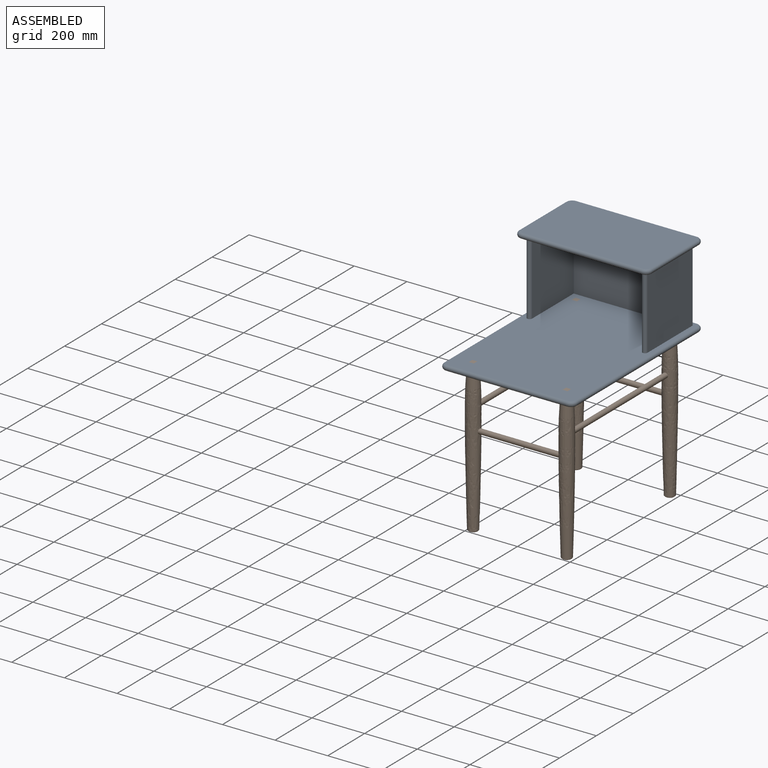
[diagram: assembled view]
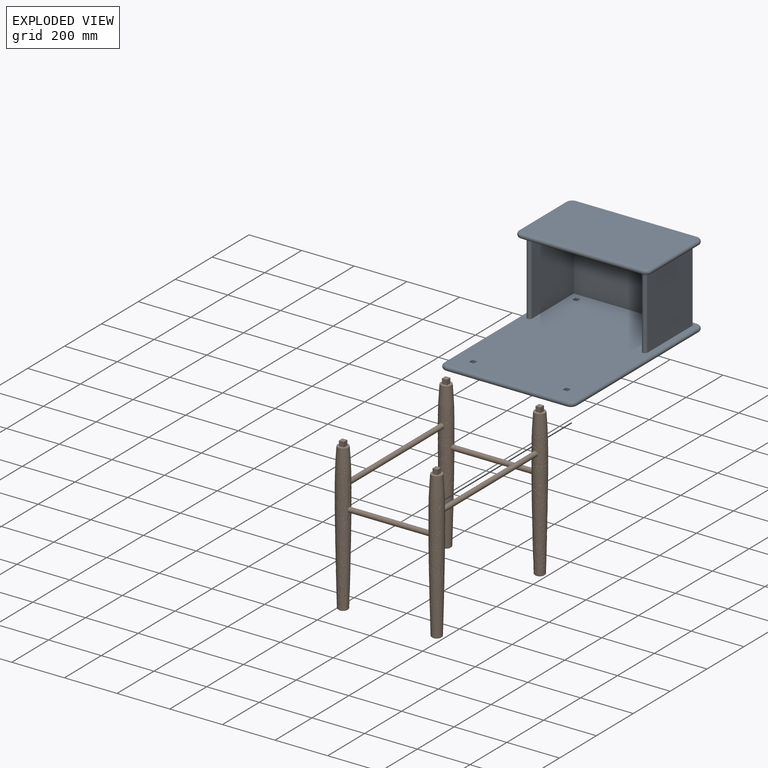
[diagram: exploded view]
GUIDED TOUR — MATED ASSEMBLY WITH SUBASSEMBLIES (Onshape document 42140cbed32f519b6c715c3e, AutoMate assembly 42140cbed32f519b6c715c3e_42d3c3906fbb0b2f734edfca_d33cc1c016509335d22bfc83_default)

This assembly has 13 component occurrences arranged in 2 top-level units: 0 individual components plus 2 subassemblies (S0, S1). The tour has two levels: first the top level, where each subassembly is treated as one rigid unit; then each subassembly is toured internally in its own section (nesting deeper than one subassembly level is flattened into its subassembly's section).

Components are labeled P0..P12 across the whole record; subassembly units are labeled S0..S1. A mate is a constraint between two units; its type names the relative motion it leaves free:
  CYLINDRICAL — leaves both rotation about and translation along the listed axis free,
  PLANAR — leaves sliding in the plane through the listed point (normal = the listed direction) and rotation about that normal free.
Axis/direction vectors are unit vectors and 'through' points are millimeter coordinates, both in the assembly's world frame.

TOP-LEVEL MATES (between units; each subassembly's internal mates are listed in its own section)
  1. PLANAR "Planar 2": S1 <-> S0, direction (0.000, -1.000, 0.000) through (-159.28, -422.03, 234.27) mm
  2. PLANAR "Planar 1": S0 <-> S1, direction (1.000, 0.000, 0.000) through (-168.81, -412.50, 243.80) mm
  3. PLANAR "Planar 3": S0 <-> S1, direction (0.000, 0.000, 1.000) through (18.52, -147.27, 243.80) mm

TOP-LEVEL ASSEMBLY ORDER
  1. S1 — the base component [order verified]
  2. S0 [order verified]
Order-tag legend:
  [order verified] — this step's position reverses a verified removal order: the component was checked to insert without passing through the ones already placed.

Of the 13 component occurrences, 9 carry the full construction recipe — the FeatureScript program that regenerates the part's solid from scratch; the rest are supplied as boundary geometry only. Each toured unit is shown spotlighted twice — assembled, then exploded with a leader line back to its socket (green = recipe-attached component, orange = geometry-only, blue = subassembly unit; the rest desaturated gray).
NOTE — document 2 of 2 of this assembly tour. The two overview renders and the header above are repeated from document 1; the component sections below continue where the previous document stopped.
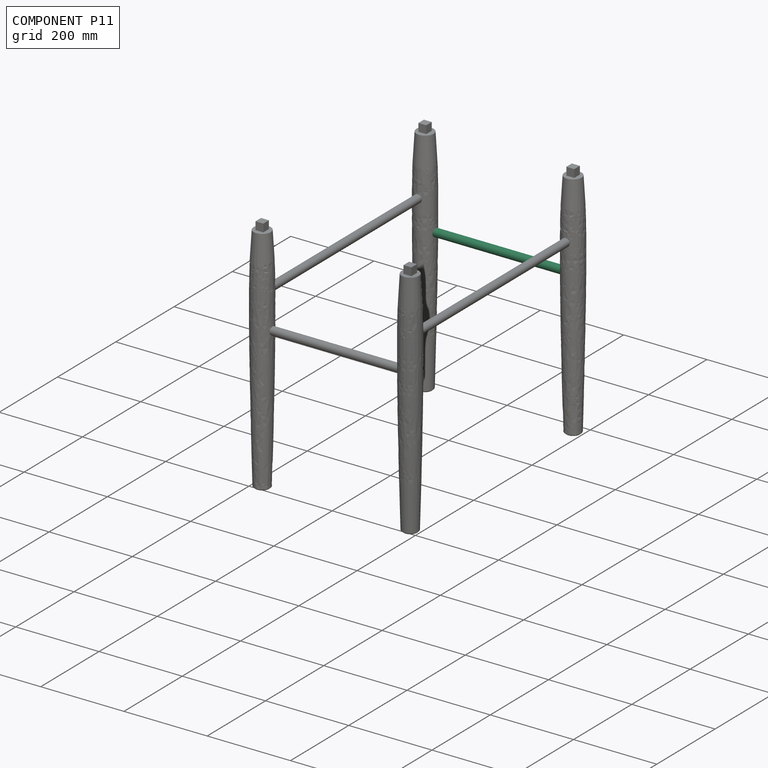
[diagram: component P11 — assembled]
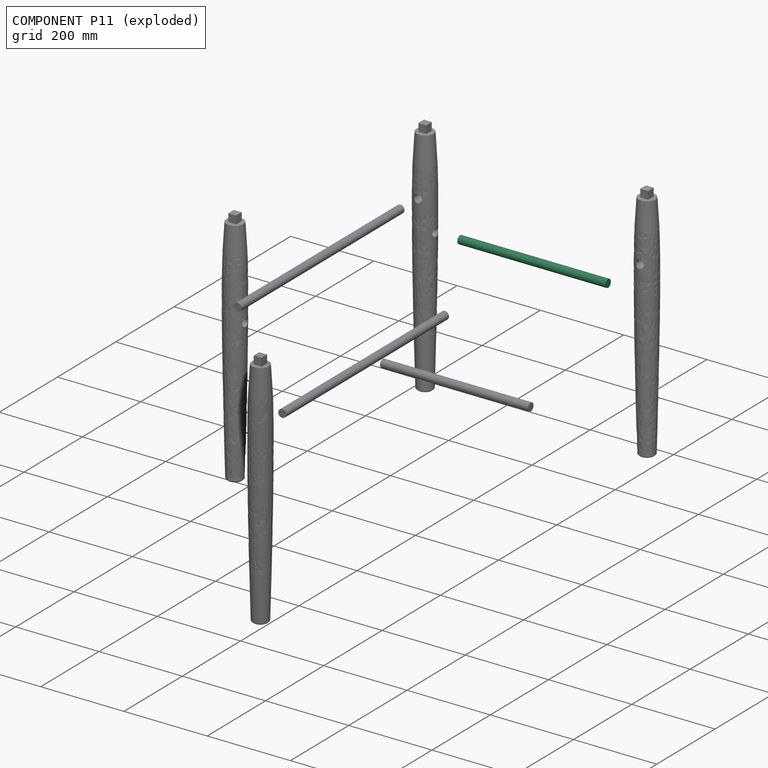
[diagram: component P11 — exploded]
COMPONENT P11 — same part as P2 (CADFS 00509527); its construction recipe is shown at P2.
Held by: CYLINDRICAL mate "Cylindrical 1" to P1; PLANAR mate "Planar 2" to P8; PLANAR mate "Planar 1" to P1; CYLINDRICAL mate "Cylindrical 2" to P8; CYLINDRICAL mate "Cylindrical 1" to P1; CYLINDRICAL mate "Cylindrical 2" to P8; PLANAR mate "Planar 1" to P1; PLANAR mate "Planar 2" to P8.
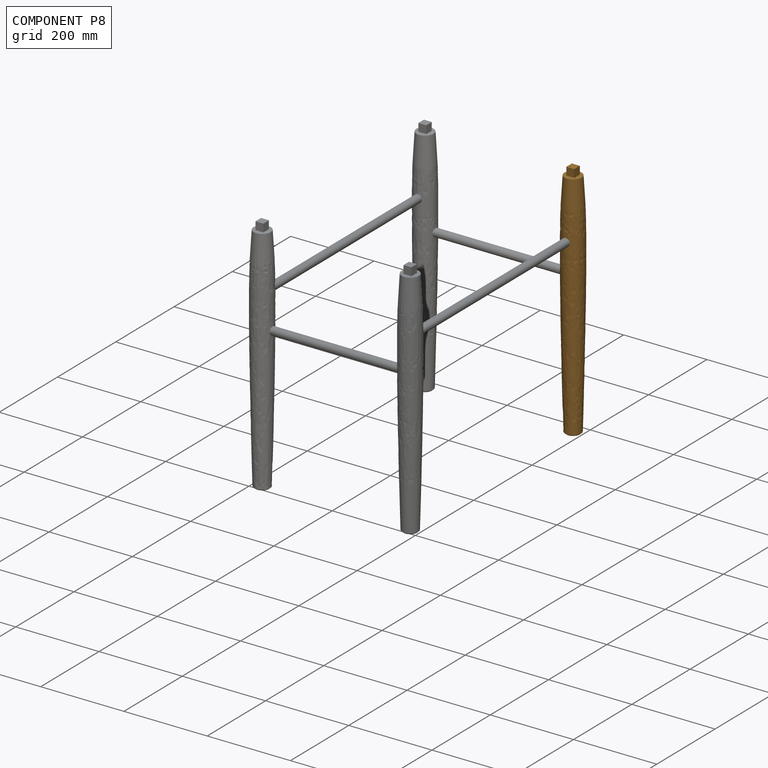
[diagram: component P8 — assembled]
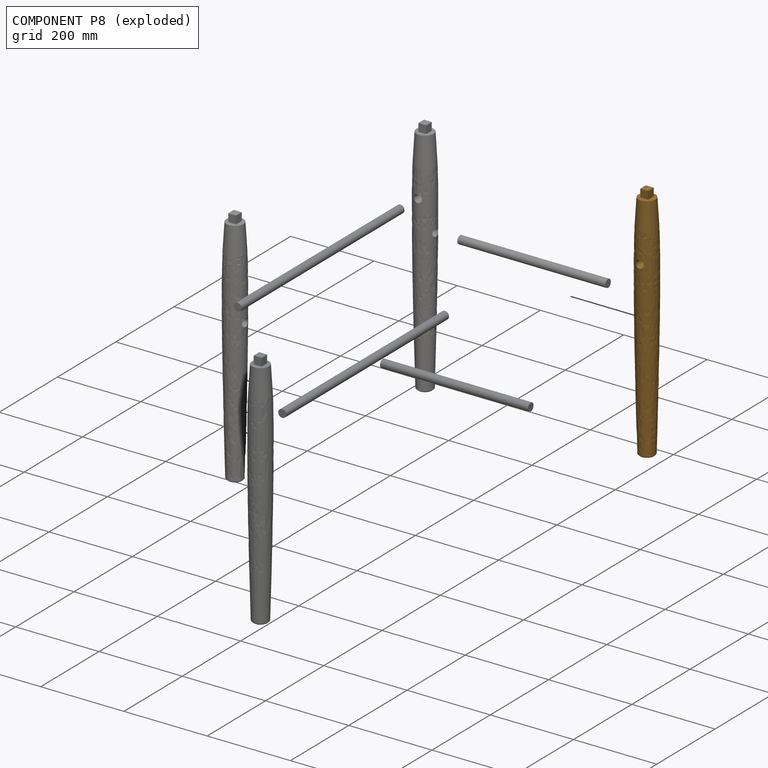
[diagram: component P8 — exploded]
COMPONENT P8 — geometry summary (no construction recipe available for this part):
  bounding box: 577.9 x 52.0 x 52.0 mm
  B-rep topology: 1 solid, 13 faces, 54 edges
  volume: 989218 mm^3 (63% of its bounding box)
Held by: CYLINDRICAL mate "Cylindrical 3" to P12; PLANAR mate "Planar 3" to P12; PLANAR mate "Planar 2" to P11; CYLINDRICAL mate "Cylindrical 2" to P11; CYLINDRICAL mate "Cylindrical 3" to P12; CYLINDRICAL mate "Cylindrical 2" to P11; PLANAR mate "Planar 2" to P11; PLANAR mate "Planar 3" to P12.
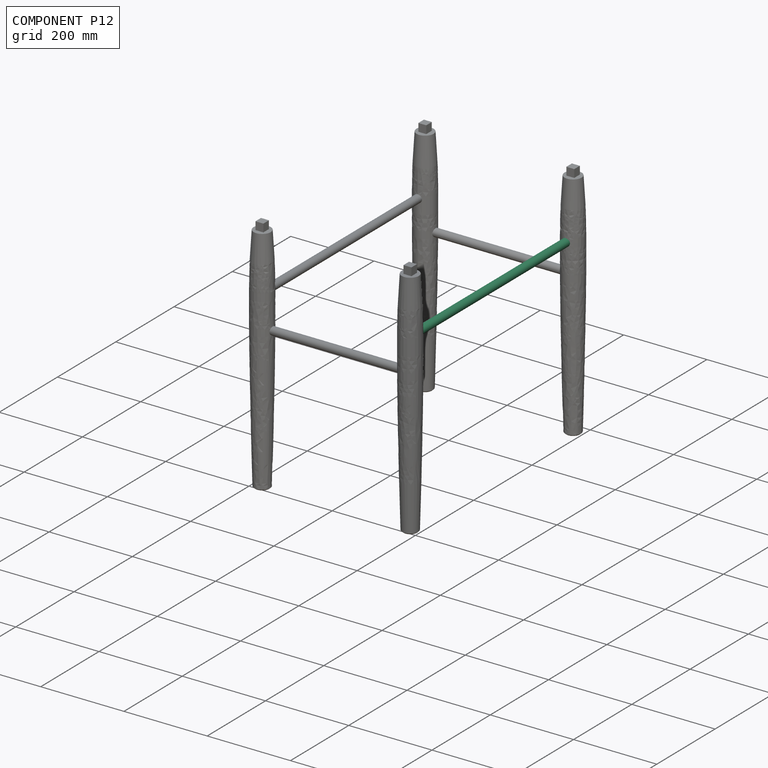
[diagram: component P12 — assembled]
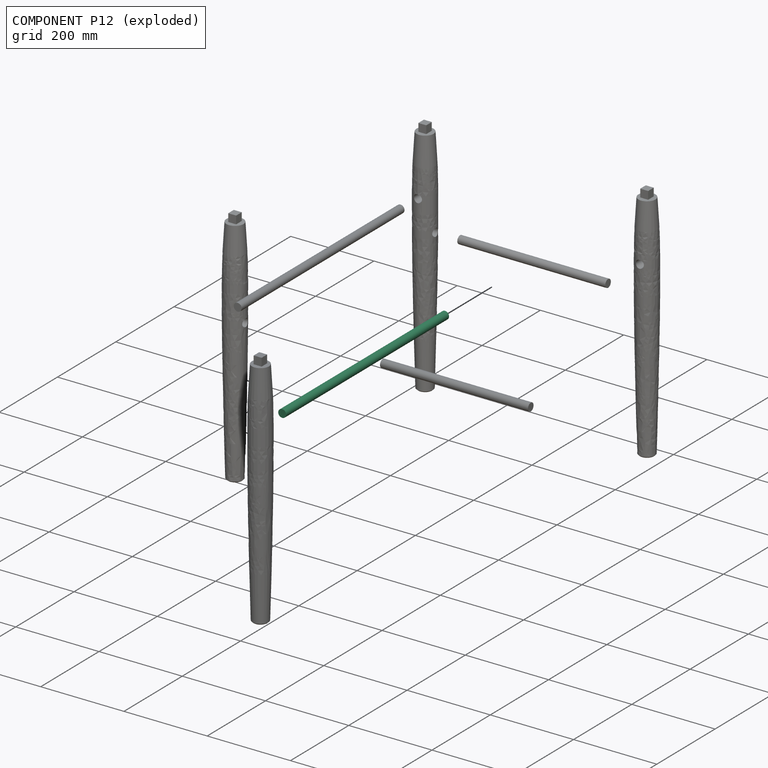
[diagram: component P12 — exploded]
COMPONENT P12 — same part as P9 (CADFS 00509534); its construction recipe is shown at P9.
Held by: PLANAR mate "Planar 4" to P7; CYLINDRICAL mate "Cylindrical 3" to P8; PLANAR mate "Planar 3" to P8; CYLINDRICAL mate "Cylindrical 4" to P7; PLANAR mate "Planar 4" to P7; CYLINDRICAL mate "Cylindrical 4" to P7; CYLINDRICAL mate "Cylindrical 3" to P8; PLANAR mate "Planar 3" to P8.
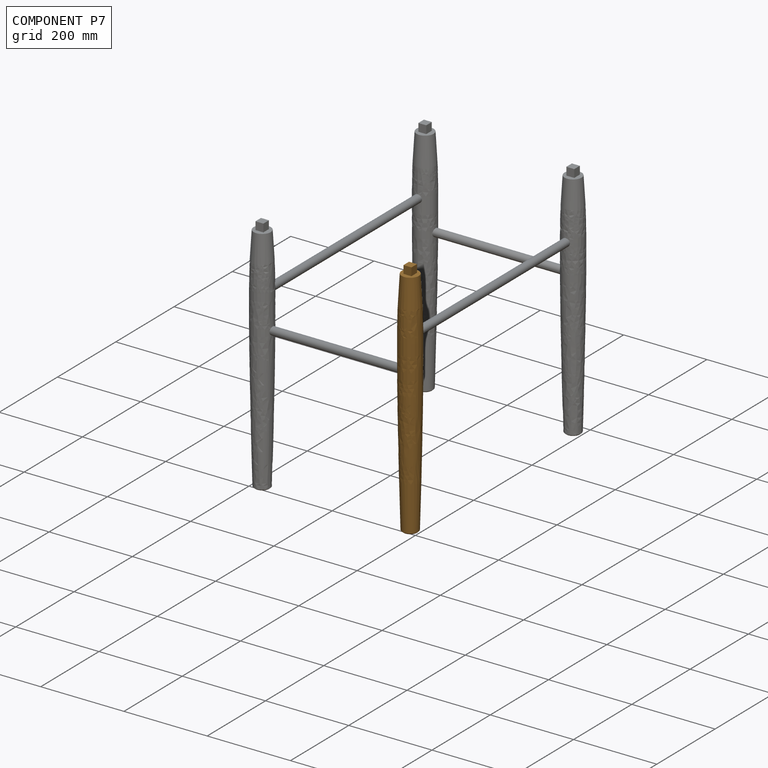
[diagram: component P7 — assembled]
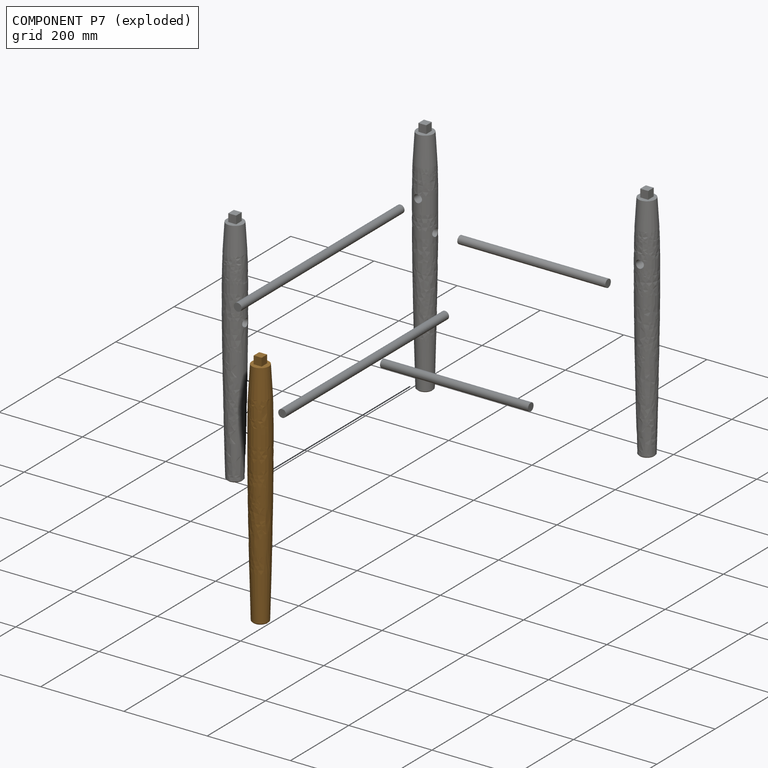
[diagram: component P7 — exploded]
COMPONENT P7 — geometry summary (no construction recipe available for this part):
  bounding box: 577.9 x 52.0 x 52.0 mm
  B-rep topology: 1 solid, 13 faces, 50 edges
  volume: 989243 mm^3 (63% of its bounding box)
Held by: PLANAR mate "Planar 4" to P12; PLANAR mate "Planar 6" to P2; CYLINDRICAL mate "Cylindrical 4" to P12; CYLINDRICAL mate "Cylindrical 7" to P2; PLANAR mate "Planar 4" to P12; CYLINDRICAL mate "Cylindrical 4" to P12; PLANAR mate "Planar 6" to P2; CYLINDRICAL mate "Cylindrical 7" to P2.
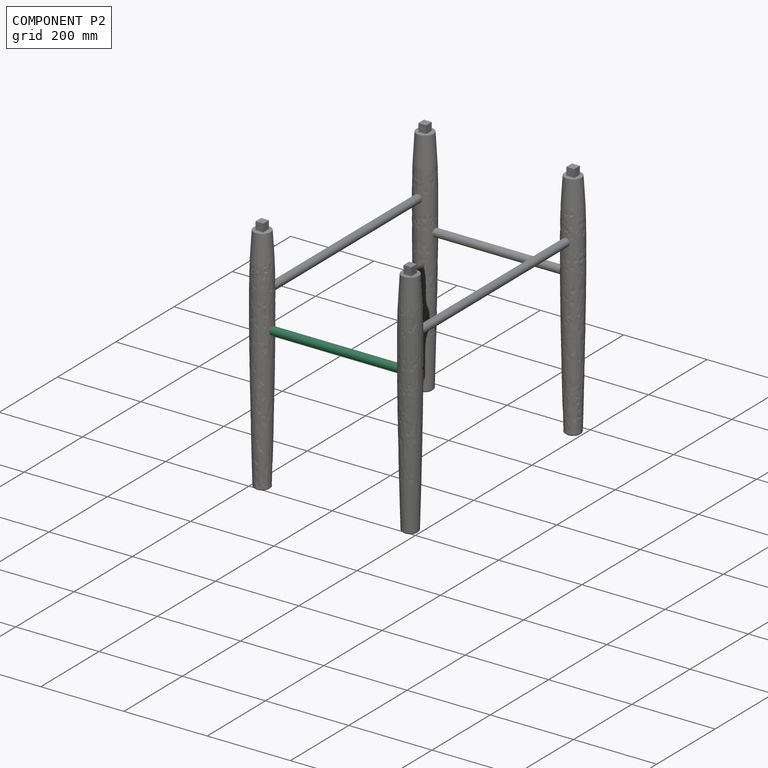
[diagram: component P2 — assembled]
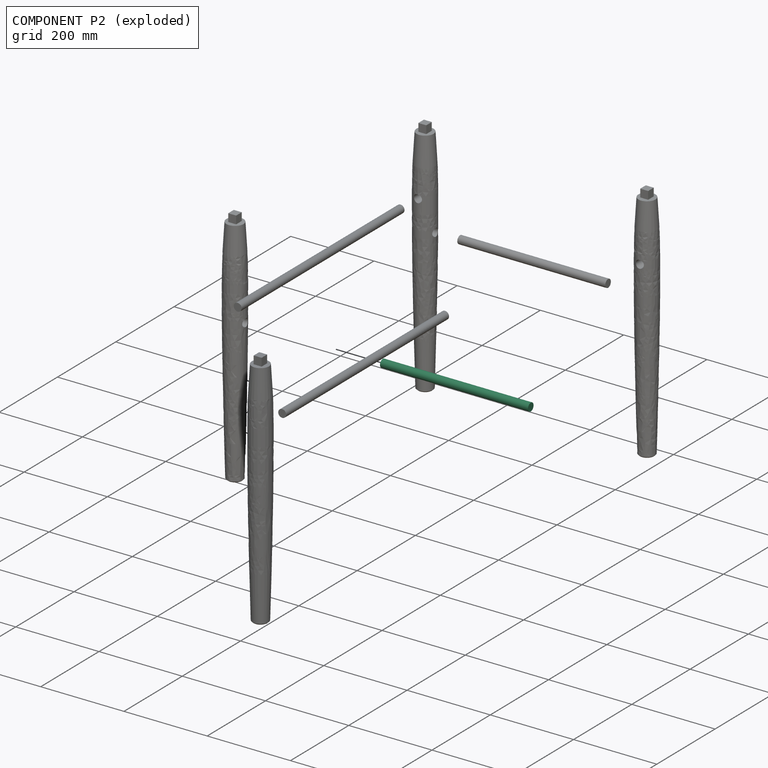
[diagram: component P2 — exploded]
COMPONENT P2 — recipe-attached (CADFS 00509527, mesh-verified: the recipe's output STEP matches this component's geometry to below the mesh-comparison resolution (tessellation chordal tolerance ~0.535 mm)).
Held by: PLANAR mate "Planar 6" to P7; CYLINDRICAL mate "Cylindrical 6" to P4; PLANAR mate "Planar 7" to P4; CYLINDRICAL mate "Cylindrical 7" to P7; PLANAR mate "Planar 6" to P7; CYLINDRICAL mate "Cylindrical 7" to P7; CYLINDRICAL mate "Cylindrical 6" to P4; PLANAR mate "Planar 7" to P4.
Construction recipe (FeatureScript — the CAD program that rebuilds this solid; sketch coordinates are in the units given by the * unit suffixes, e.g. mm):

FeatureScript 1511;
import(path : "onshape/std/geometry.fs", version : "1511.0");
import(path : "onshape/std/common.fs", version : "1511.0");
const mm = millimeter;
const VERTEX = EntityType.VERTEX;
const EDGE = EntityType.EDGE;
const FACE = EntityType.FACE;
const BODY = EntityType.BODY;
function v(x, y){return vector(x, y);}
function OD(order){return orderDisambiguation(order);}
function OSD(set){return originalSetDisambiguation(set);}
function TD(topology){return topologyDisambiguation(topology);}
function TDD(query){return trueDependencyDisambiguation(query);}
function sQuery(a, b, c) {return sketchEntityQuery(a, b, c);}

annotation { "Feature Type Name" : "Feature", "Feature Type Description" : "" }
export const myFeature = defineFeature(function(context is Context, id is Id, definition is map)
    precondition{}
    {
        {
            var Q0;
            Q0=qCreatedBy(makeId("Top.planeOp"),FACE);
            var sketch = newSketch(context, id + "F0", { "sketchPlane" : qUnion([Q0])});
            skLineSegment(sketch, "E0.bottom", {"start": v(9.52, 177.8) * mm, "end": v(-9.52, 177.8) * mm});
            skLineSegment(sketch, "E0.top", {"start": v(9.53, -177.8) * mm, "end": v(-9.53, -177.8) * mm});
            skLineSegment(sketch, "E0.left", {"start": v(9.53, 177.8) * mm, "end": v(9.53, -177.8) * mm});
            skLineSegment(sketch, "E0.right", {"start": v(-9.52, 177.8) * mm, "end": v(-9.53, -177.8) * mm});
            skPoint(sketch, "E0.middle", {"position": v(0, 0) * mm});
            skLineSegment(sketch, "E1", {"start": v(0, -177.8) * mm, "end": v(0, 177.8) * mm});
            skSolve(sketch);
        }
        {
            var Q0;
            {var subQ0=sQuery(id+"F0.wireOp",EDGE,"E0.right");Q0=makeQuery(id+"F0.imprint","IMPRINT",FACE,{"disambiguationData":[TD([[makeQuery(id+"F0.imprint","IMPRINT",EDGE,{"derivedFrom":subQ0}),1.0]])]});}
            var Q1;
            Q1=sQuery(id+"F0.wireOp",EDGE,"E1");
            revolve(context, id + "F1", {"entities" : qUnion([Q0]), "axis" : qUnion([Q1]), "revolveType" : RevolveType.FULL});
        }
    });
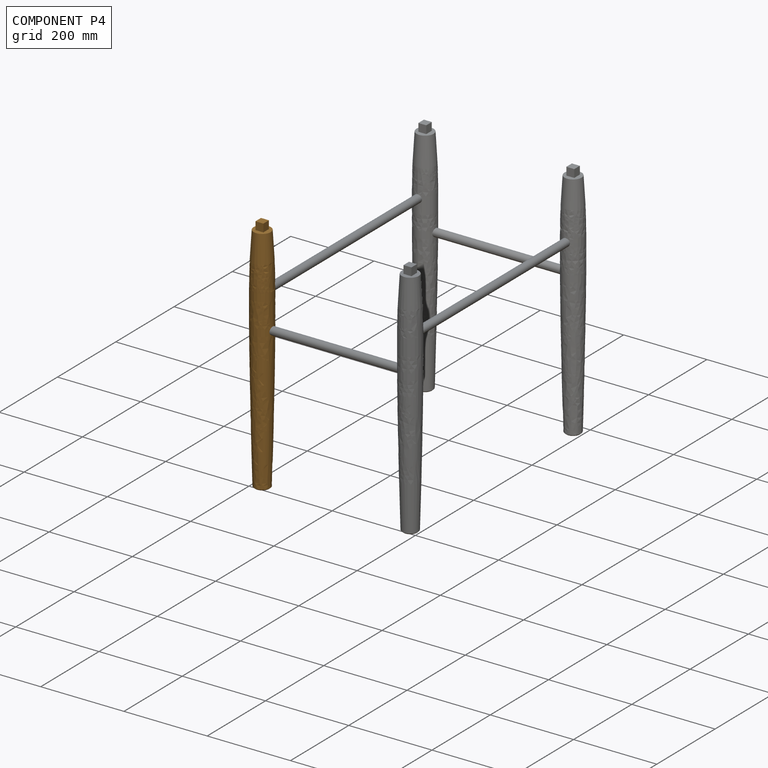
[diagram: component P4 — assembled]
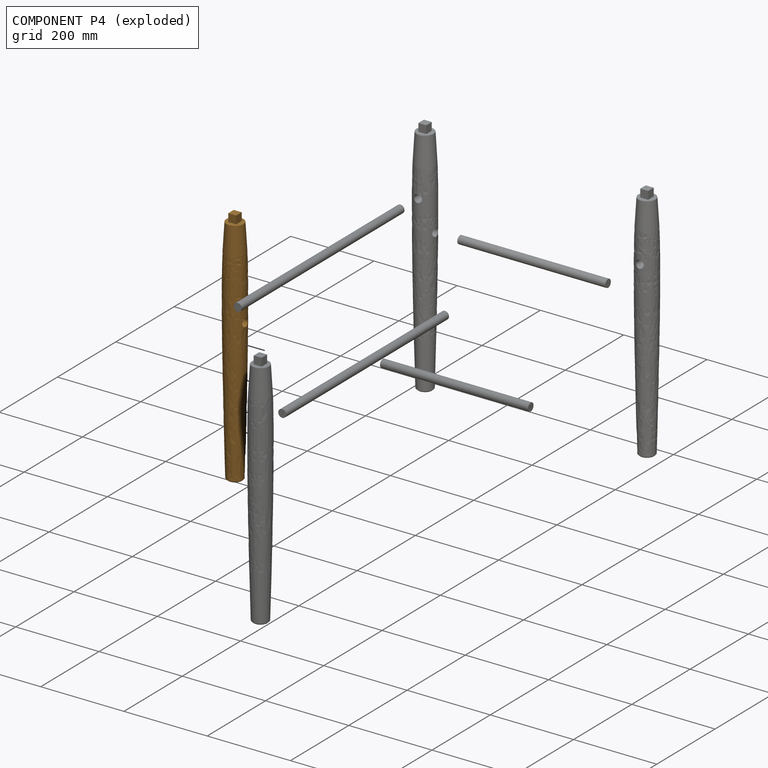
[diagram: component P4 — exploded]
COMPONENT P4 — geometry summary (no construction recipe available for this part):
  bounding box: 577.9 x 52.0 x 52.0 mm
  B-rep topology: 1 solid, 13 faces, 54 edges
  volume: 989218 mm^3 (63% of its bounding box)
Held by: CYLINDRICAL mate "Cylindrical 6" to P2; PLANAR mate "Planar 7" to P2; CYLINDRICAL mate "Cylindrical 6" to P2; PLANAR mate "Planar 7" to P2.
PROVENANCE & LICENSES
Assembly (occurrences, transforms, mates, per-part STEP geometry): AutoMate dataset, Zenodo record 7776208, CC0.
Construction recipes: CADFS (HuggingFace VladPyatov/CADFS, CC-BY-4.0, layered over the ABC dataset), FeatureScript reconstruction programs keyed by ABC model id.
Join: ABC meta listings map ABC model id -> Onshape documentId; within a shared document, parts are matched by geometric signature (bounding-box dims + volume at 0.1% relative tolerance, exact B-rep face/solid counts).
Verification: 9 of this assembly's 13 components carry a recipe attachment, and every attachment is mesh-verified: the CADFS STEP and the AutoMate member STEP were compared as meshes in their shared local frame (symmetric sampled-point-to-mesh distance); worst across the 9 attachments: below the mesh-comparison resolution (tessellation chordal tolerance ~1.31 mm) on a 874 mm part.
Renders: orthographic iso camera (az 35 / el 25); the floor grid conveys scale (grid pitch printed in each image; no ruler). In the exploded view each component is displaced by its stored offset vector: the offsets alone carry the explosion direction (mate normal/axis signs are not orientation cues and do not encode it), and separation distances are assigned per mate-chain, not proportionally to assembly-order depth.
